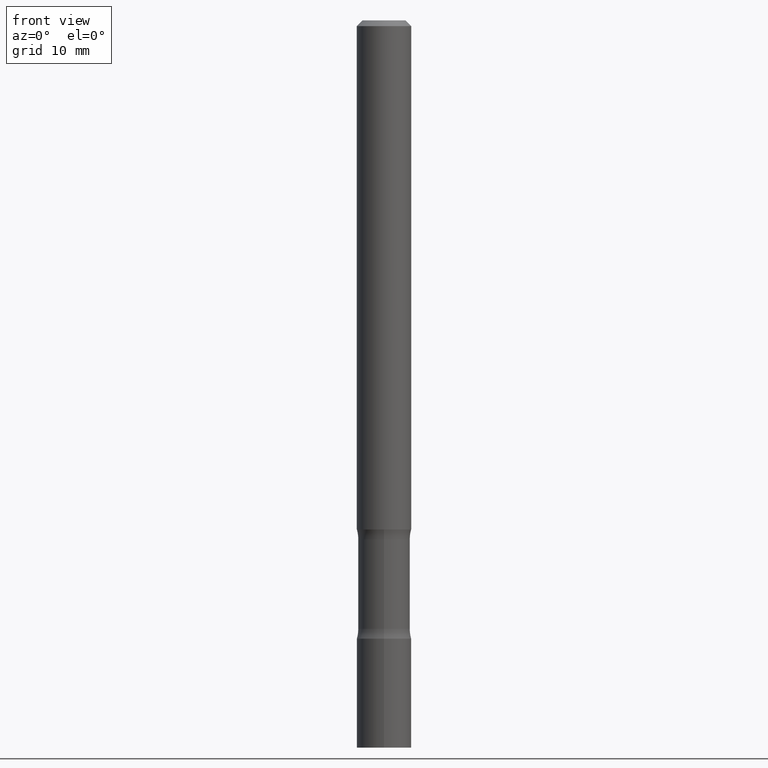
[diagram: clean part render]
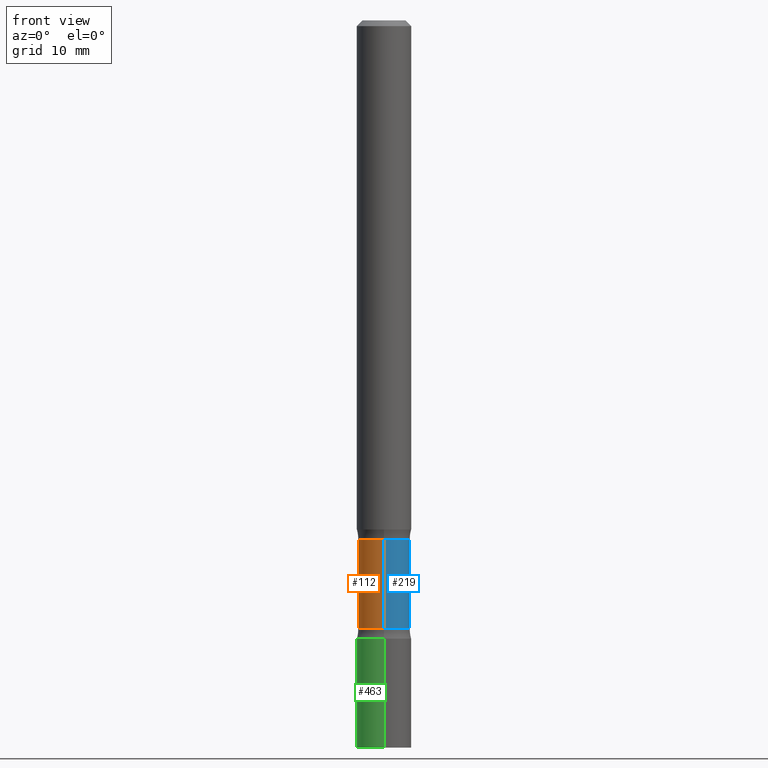
[diagram: same view with three faces highlighted in distinct colors, each labeled with its STEP entity id]
A machine part, front view with three faces highlighted in distinct colors.
Their STEP definitions:

[orange] entity #112 — the highlighted cylindrical surface (edge-blend (fillet) strip) has radius 2.2622 mm, axis along (0, -0, -1).
#6 = CIRCLE ( 'NONE', #292, 0.08906250000000008604 ) ;
#13 = DIRECTION ( 'NONE',  ( 6.982962677686265133E-15, 1.000000000000000000, -6.134676196298693444E-15 ) ) ;
#24 = EDGE_CURVE ( 'NONE', #40, #304, #264, .T. ) ;
#26 = EDGE_CURVE ( 'NONE', #40, #370, #294, .T. ) ;
#29 = CARTESIAN_POINT ( 'NONE',  ( 6.219201134814764177E-16, 0.08906249999999373002, -1.783910210022204623 ) ) ;
#35 = DIRECTION ( 'NONE',  ( 6.982962677686265133E-15, 1.000000000000000000, -3.067338098149345144E-15 ) ) ;
#40 = VERTEX_POINT ( 'NONE', #173 ) ;
#62 = ORIENTED_EDGE ( 'NONE', *, *, #274, .F. ) ;
#80 = CARTESIAN_POINT ( 'NONE',  ( 6.219201134814847007E-16, 0.08906249999999277245, -2.091089789977796265 ) ) ;
#101 = DIRECTION ( 'NONE',  ( 2.577039791092079409E-29, -3.303064199901000035E-15, -1.000000000000000000 ) ) ;
#104 = CARTESIAN_POINT ( 'NONE',  ( -6.270923951087528204E-16, -0.08906250000000738576, -2.091089789977795821 ) ) ;
#112 = ADVANCED_FACE ( 'NONE', ( #136 ), #318, .T. ) ;
#117 = DIRECTION ( 'NONE',  ( 2.577039791092079409E-29, -3.303064199901000035E-15, -1.000000000000000000 ) ) ;
#130 = AXIS2_PLACEMENT_3D ( 'NONE', #276, #204, #13 ) ;
#136 = FACE_OUTER_BOUND ( 'NONE', #412, .T. ) ;
#153 = ORIENTED_EDGE ( 'NONE', *, *, #24, .F. ) ;
#172 = VECTOR ( 'NONE', #101, 39.37007874015748143 ) ;
#173 = CARTESIAN_POINT ( 'NONE',  ( -6.270923951087616950E-16, -0.08906250000000633105, -1.783910210022204179 ) ) ;
#180 = LINE ( 'NONE', #421, #172 ) ;
#188 = AXIS2_PLACEMENT_3D ( 'NONE', #424, #316, #362 ) ;
#204 = DIRECTION ( 'NONE',  ( 2.577039791092079409E-29, -3.303064199901000429E-15, -1.000000000000000000 ) ) ;
#230 = CARTESIAN_POINT ( 'NONE',  ( 5.108949665098794430E-29, -7.307796357737152502E-15, -2.091089789977795821 ) ) ;
#243 = VECTOR ( 'NONE', #117, 39.37007874015748143 ) ;
#257 = DIRECTION ( 'NONE',  ( 2.577039791092079409E-29, -3.303064199901000429E-15, -1.000000000000000000 ) ) ;
#264 = LINE ( 'NONE', #499, #243 ) ;
#267 = ORIENTED_EDGE ( 'NONE', *, *, #268, .T. ) ;
#268 = EDGE_CURVE ( 'NONE', #370, #502, #180, .T. ) ;
#274 = EDGE_CURVE ( 'NONE', #304, #502, #6, .T. ) ;
#276 = CARTESIAN_POINT ( 'NONE',  ( 6.162727547309833585E-29, -8.658453033435494328E-15, -2.500000000000000000 ) ) ;
#292 = AXIS2_PLACEMENT_3D ( 'NONE', #230, #257, #35 ) ;
#294 = CIRCLE ( 'NONE', #188, 0.08906250000000003053 ) ;
#304 = VERTEX_POINT ( 'NONE', #104 ) ;
#316 = DIRECTION ( 'NONE',  ( 2.577039791092079409E-29, -3.303064199901000429E-15, -1.000000000000000000 ) ) ;
#318 = CYLINDRICAL_SURFACE ( 'NONE', #130, 0.08906250000000004441 ) ;
#362 = DIRECTION ( 'NONE',  ( 6.982962677686265133E-15, 1.000000000000000000, -3.067338098149347116E-15 ) ) ;
#370 = VERTEX_POINT ( 'NONE', #29 ) ;
#383 = ORIENTED_EDGE ( 'NONE', *, *, #26, .T. ) ;
#412 = EDGE_LOOP ( 'NONE', ( #153, #383, #267, #62 ) ) ;
#421 = CARTESIAN_POINT ( 'NONE',  ( 6.219201134814949559E-16, 0.08906249999999139855, -2.500000000000000444 ) ) ;
#424 = CARTESIAN_POINT ( 'NONE',  ( 4.317335664542283686E-29, -6.293162484245211017E-15, -1.783910210022204401 ) ) ;
#499 = CARTESIAN_POINT ( 'NONE',  ( -6.110131029264656761E-16, -0.08906250000000870415, -2.499999999999999556 ) ) ;
#502 = VERTEX_POINT ( 'NONE', #80 ) ;

[blue] entity #219 — the highlighted cylindrical surface (edge-blend (fillet) strip) has radius 2.2622 mm, axis along (0, -0, -1).
#3 = AXIS2_PLACEMENT_3D ( 'NONE', #19, #158, #300 ) ;
#19 = CARTESIAN_POINT ( 'NONE',  ( 6.162727547309833585E-29, -8.658453033435494328E-15, -2.500000000000000000 ) ) ;
#24 = EDGE_CURVE ( 'NONE', #40, #304, #264, .T. ) ;
#29 = CARTESIAN_POINT ( 'NONE',  ( 6.219201134814764177E-16, 0.08906249999999373002, -1.783910210022204623 ) ) ;
#32 = CIRCLE ( 'NONE', #238, 0.08906250000000003053 ) ;
#34 = EDGE_LOOP ( 'NONE', ( #419, #381, #377, #82 ) ) ;
#40 = VERTEX_POINT ( 'NONE', #173 ) ;
#71 = CYLINDRICAL_SURFACE ( 'NONE', #3, 0.08906250000000004441 ) ;
#80 = CARTESIAN_POINT ( 'NONE',  ( 6.219201134814847007E-16, 0.08906249999999277245, -2.091089789977796265 ) ) ;
#82 = ORIENTED_EDGE ( 'NONE', *, *, #268, .F. ) ;
#101 = DIRECTION ( 'NONE',  ( 2.577039791092079409E-29, -3.303064199901000035E-15, -1.000000000000000000 ) ) ;
#104 = CARTESIAN_POINT ( 'NONE',  ( -6.270923951087528204E-16, -0.08906250000000738576, -2.091089789977795821 ) ) ;
#117 = DIRECTION ( 'NONE',  ( 2.577039791092079409E-29, -3.303064199901000035E-15, -1.000000000000000000 ) ) ;
#158 = DIRECTION ( 'NONE',  ( 2.577039791092079409E-29, -3.303064199901000429E-15, -1.000000000000000000 ) ) ;
#172 = VECTOR ( 'NONE', #101, 39.37007874015748143 ) ;
#173 = CARTESIAN_POINT ( 'NONE',  ( -6.270923951087616950E-16, -0.08906250000000633105, -1.783910210022204179 ) ) ;
#180 = LINE ( 'NONE', #421, #172 ) ;
#196 = DIRECTION ( 'NONE',  ( 2.577039791092079409E-29, -3.303064199901000429E-15, -1.000000000000000000 ) ) ;
#219 = ADVANCED_FACE ( 'NONE', ( #289 ), #71, .T. ) ;
#237 = EDGE_CURVE ( 'NONE', #370, #40, #32, .T. ) ;
#238 = AXIS2_PLACEMENT_3D ( 'NONE', #403, #457, #448 ) ;
#243 = VECTOR ( 'NONE', #117, 39.37007874015748143 ) ;
#264 = LINE ( 'NONE', #499, #243 ) ;
#268 = EDGE_CURVE ( 'NONE', #370, #502, #180, .T. ) ;
#289 = FACE_OUTER_BOUND ( 'NONE', #34, .T. ) ;
#300 = DIRECTION ( 'NONE',  ( 6.982962677686265133E-15, 1.000000000000000000, -6.134676196298693444E-15 ) ) ;
#304 = VERTEX_POINT ( 'NONE', #104 ) ;
#319 = EDGE_CURVE ( 'NONE', #502, #304, #341, .T. ) ;
#341 = CIRCLE ( 'NONE', #374, 0.08906250000000008604 ) ;
#370 = VERTEX_POINT ( 'NONE', #29 ) ;
#374 = AXIS2_PLACEMENT_3D ( 'NONE', #492, #196, #498 ) ;
#377 = ORIENTED_EDGE ( 'NONE', *, *, #319, .F. ) ;
#381 = ORIENTED_EDGE ( 'NONE', *, *, #24, .T. ) ;
#403 = CARTESIAN_POINT ( 'NONE',  ( 4.317335664542283686E-29, -6.293162484245211017E-15, -1.783910210022204401 ) ) ;
#419 = ORIENTED_EDGE ( 'NONE', *, *, #237, .T. ) ;
#421 = CARTESIAN_POINT ( 'NONE',  ( 6.219201134814949559E-16, 0.08906249999999139855, -2.500000000000000444 ) ) ;
#448 = DIRECTION ( 'NONE',  ( 6.982962677686265133E-15, 1.000000000000000000, -3.067338098149347116E-15 ) ) ;
#457 = DIRECTION ( 'NONE',  ( 2.577039791092079409E-29, -3.303064199901000429E-15, -1.000000000000000000 ) ) ;
#492 = CARTESIAN_POINT ( 'NONE',  ( 5.108949665098794430E-29, -7.307796357737152502E-15, -2.091089789977795821 ) ) ;
#498 = DIRECTION ( 'NONE',  ( 6.982962677686265133E-15, 1.000000000000000000, -3.067338098149345144E-15 ) ) ;
#499 = CARTESIAN_POINT ( 'NONE',  ( -6.110131029264656761E-16, -0.08906250000000870415, -2.499999999999999556 ) ) ;
#502 = VERTEX_POINT ( 'NONE', #80 ) ;

[green] entity #463 — the highlighted cylindrical surface (edge-blend (fillet) strip) has radius 2.3813 mm, axis along (-0, 0, 1).
#4 = CARTESIAN_POINT ( 'NONE',  ( 5.196337625650303527E-29, -7.419803958472619019E-15, -2.125000000000000000 ) ) ;
#16 = VERTEX_POINT ( 'NONE', #110 ) ;
#30 = AXIS2_PLACEMENT_3D ( 'NONE', #382, #239, #380 ) ;
#44 = AXIS2_PLACEMENT_3D ( 'NONE', #253, #224, #56 ) ;
#56 = DIRECTION ( 'NONE',  ( -6.982962677686265922E-15, -1.000000000000000000, 5.827942386483760744E-15 ) ) ;
#74 = ORIENTED_EDGE ( 'NONE', *, *, #488, .F. ) ;
#95 = CARTESIAN_POINT ( 'NONE',  ( 6.661338147750938256E-16, 0.09375000000000001388, -3.273442922855567185E-16 ) ) ;
#110 = CARTESIAN_POINT ( 'NONE',  ( -6.546527510330356365E-16, -0.09375000000000743849, -2.125000000000000000 ) ) ;
#148 = EDGE_CURVE ( 'NONE', #449, #236, #440, .T. ) ;
#154 = LINE ( 'NONE', #338, #200 ) ;
#161 = DIRECTION ( 'NONE',  ( -2.445335353247201709E-29, 3.491672451045937805E-15, 1.000000000000000000 ) ) ;
#169 = CYLINDRICAL_SURFACE ( 'NONE', #30, 0.09375000000000001388 ) ;
#174 = EDGE_CURVE ( 'NONE', #189, #16, #154, .T. ) ;
#189 = VERTEX_POINT ( 'NONE', #298 ) ;
#200 = VECTOR ( 'NONE', #416, 39.37007874015748143 ) ;
#213 = AXIS2_PLACEMENT_3D ( 'NONE', #4, #161, #462 ) ;
#224 = DIRECTION ( 'NONE',  ( -2.445335353247201709E-29, 3.491672451045937805E-15, 1.000000000000000000 ) ) ;
#236 = VERTEX_POINT ( 'NONE', #443 ) ;
#239 = DIRECTION ( 'NONE',  ( -2.445335353247201709E-29, 3.491672451045937805E-15, 1.000000000000000000 ) ) ;
#248 = VECTOR ( 'NONE', #376, 39.37007874015748143 ) ;
#253 = CARTESIAN_POINT ( 'NONE',  ( 6.113338383118004413E-29, -8.729181127614846091E-15, -2.500000000000000000 ) ) ;
#293 = ORIENTED_EDGE ( 'NONE', *, *, #348, .T. ) ;
#298 = CARTESIAN_POINT ( 'NONE',  ( -6.546527510330263674E-16, -0.09375000000000872913, -2.499999999999999556 ) ) ;
#338 = CARTESIAN_POINT ( 'NONE',  ( -6.546527510330875041E-16, -0.09375000000000001388, 3.273442922855567185E-16 ) ) ;
#348 = EDGE_CURVE ( 'NONE', #449, #189, #402, .T. ) ;
#376 = DIRECTION ( 'NONE',  ( -2.445335353247201709E-29, 3.491672451045938200E-15, 1.000000000000000000 ) ) ;
#380 = DIRECTION ( 'NONE',  ( -6.982962677686265922E-15, -1.000000000000000000, 3.491672451045937805E-15 ) ) ;
#382 = CARTESIAN_POINT ( 'NONE',  ( 0.000000000000000000, 0.000000000000000000, 0.000000000000000000 ) ) ;
#402 = CIRCLE ( 'NONE', #44, 0.09375000000000001388 ) ;
#416 = DIRECTION ( 'NONE',  ( -2.445335353247201709E-29, 3.491672451045938200E-15, 1.000000000000000000 ) ) ;
#428 = CIRCLE ( 'NONE', #213, 0.09375000000000001388 ) ;
#429 = CARTESIAN_POINT ( 'NONE',  ( 6.661338147751504264E-16, 0.09374999999999128475, -2.500000000000000444 ) ) ;
#440 = LINE ( 'NONE', #95, #248 ) ;
#443 = CARTESIAN_POINT ( 'NONE',  ( 6.661338147751549624E-16, 0.09374999999999257538, -2.125000000000000444 ) ) ;
#449 = VERTEX_POINT ( 'NONE', #429 ) ;
#454 = ORIENTED_EDGE ( 'NONE', *, *, #148, .F. ) ;
#462 = DIRECTION ( 'NONE',  ( -6.982962677686265922E-15, -1.000000000000000000, 2.913971193241880372E-15 ) ) ;
#463 = ADVANCED_FACE ( 'NONE', ( #508 ), #169, .T. ) ;
#464 = ORIENTED_EDGE ( 'NONE', *, *, #174, .T. ) ;
#487 = EDGE_LOOP ( 'NONE', ( #454, #293, #464, #74 ) ) ;
#488 = EDGE_CURVE ( 'NONE', #236, #16, #428, .T. ) ;
#508 = FACE_OUTER_BOUND ( 'NONE', #487, .T. ) ;